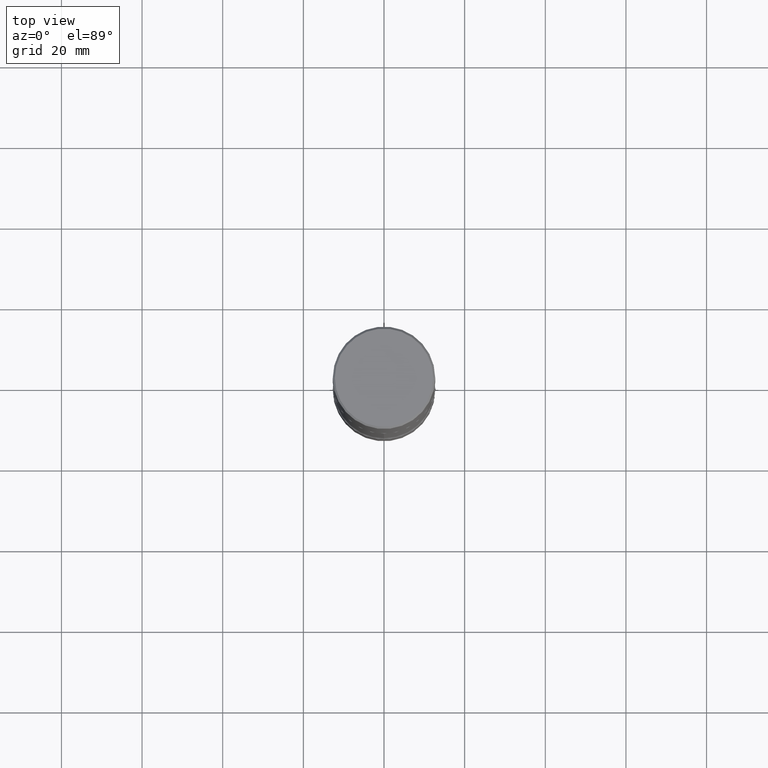
[diagram: clean part render]
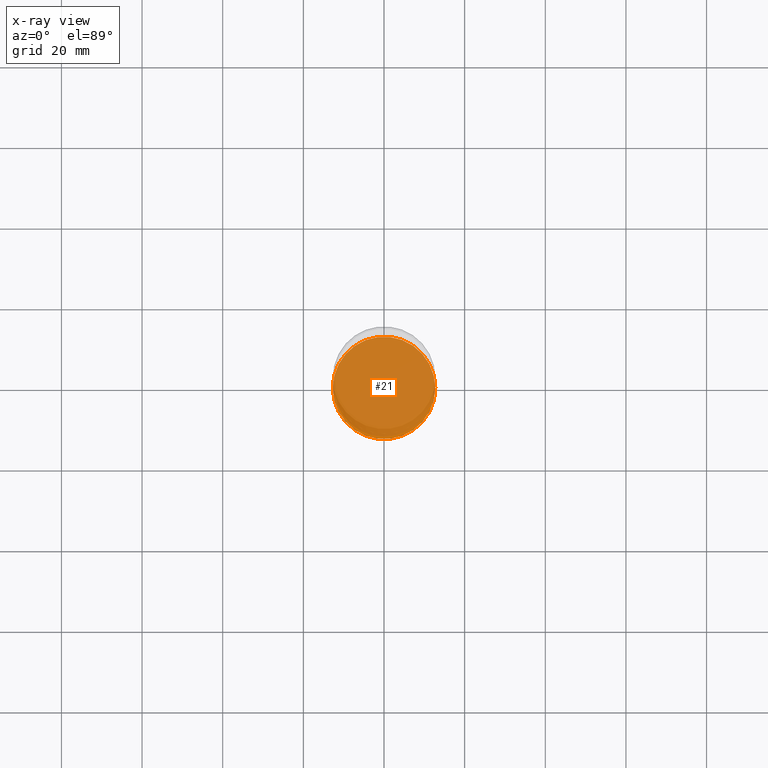
[diagram: x-ray — body ghosted, one internal face saturated and labeled with its STEP entity id]
A machine part, top view, then the same camera in x-ray: the body is ghosted and one INTERNAL B-rep face — a face not visible from any outside direction — is saturated and labeled: STEP entity #21.
In plain terms, the highlighted planar face has unit normal (0, -0, -1).
Its self-contained STEP definition (entity closure, byte-faithful):
#21 = ADVANCED_FACE ( 'NONE', ( #134 ), #168, .F. ) ;
#78 = CIRCLE ( 'NONE', #188, 0.5000000000000004441 ) ;
#97 = CARTESIAN_POINT ( 'NONE',  ( -0.5000000000000004441, -1.849599097599396794E-14, -5.750000000000001776 ) ) ;
#98 = EDGE_CURVE ( 'NONE', #171, #116, #78, .T. ) ;
#109 = AXIS2_PLACEMENT_3D ( 'NONE', #341, #510, #467 ) ;
#116 = VERTEX_POINT ( 'NONE', #97 ) ;
#122 = DIRECTION ( 'NONE',  ( -2.445468806185136597E-29, 3.491481338843145583E-15, 1.000000000000000000 ) ) ;
#123 = DIRECTION ( 'NONE',  ( 1.000000000000000000, -6.982962677686264344E-15, 0.000000000000000000 ) ) ;
#134 = FACE_OUTER_BOUND ( 'NONE', #482, .T. ) ;
#168 = PLANE ( 'NONE',  #109 ) ;
#171 = VERTEX_POINT ( 'NONE', #348 ) ;
#188 = AXIS2_PLACEMENT_3D ( 'NONE', #203, #557, #123 ) ;
#203 = CARTESIAN_POINT ( 'NONE',  ( 1.406144563556453992E-28, -2.007601769834809568E-14, -5.750000000000001776 ) ) ;
#235 = DIRECTION ( 'NONE',  ( 1.000000000000000000, -6.982962677686264344E-15, 0.000000000000000000 ) ) ;
#299 = AXIS2_PLACEMENT_3D ( 'NONE', #490, #122, #235 ) ;
#302 = ORIENTED_EDGE ( 'NONE', *, *, #488, .T. ) ;
#341 = CARTESIAN_POINT ( 'NONE',  ( 5.286305048364502604E-29, -3.264251846920369505E-14, -5.750000000000000888 ) ) ;
#348 = CARTESIAN_POINT ( 'NONE',  ( 0.5000000000000004441, -2.356749903719122903E-14, -5.750000000000001776 ) ) ;
#350 = ORIENTED_EDGE ( 'NONE', *, *, #98, .T. ) ;
#464 = CIRCLE ( 'NONE', #299, 0.5000000000000004441 ) ;
#467 = DIRECTION ( 'NONE',  ( -1.000000000000000000, 6.982962677686265922E-15, -4.876176775795935793E-29 ) ) ;
#482 = EDGE_LOOP ( 'NONE', ( #350, #302 ) ) ;
#488 = EDGE_CURVE ( 'NONE', #116, #171, #464, .T. ) ;
#490 = CARTESIAN_POINT ( 'NONE',  ( 1.406144563556453992E-28, -2.007601769834809568E-14, -5.750000000000001776 ) ) ;
#510 = DIRECTION ( 'NONE',  ( 2.438088387897960049E-29, -3.491481338843145188E-15, -1.000000000000000000 ) ) ;
#557 = DIRECTION ( 'NONE',  ( -2.445468806185136597E-29, 3.491481338843145583E-15, 1.000000000000000000 ) ) ;